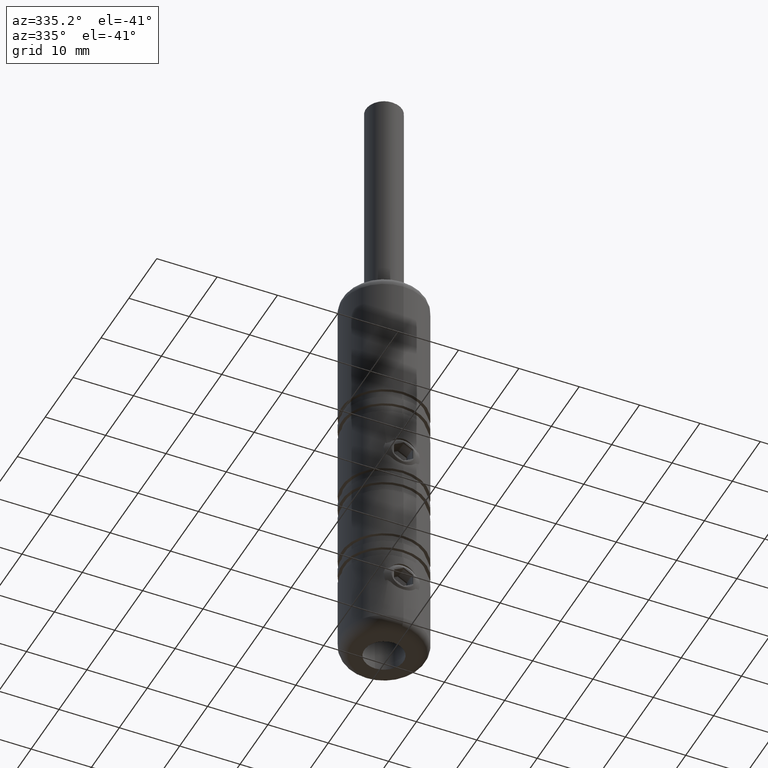
[diagram: clean part render]
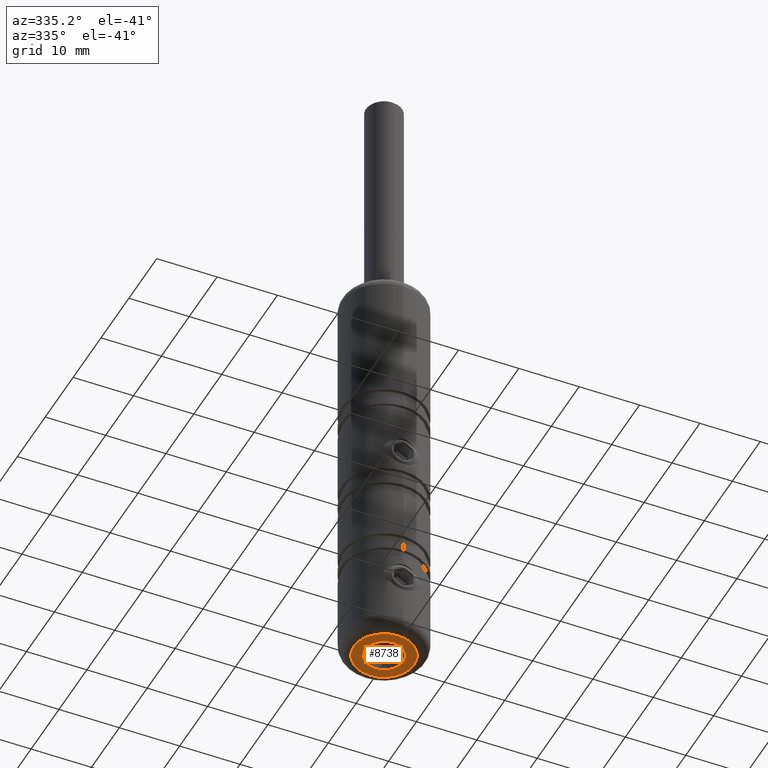
[diagram: same view with one face highlighted and labeled with its STEP entity id]
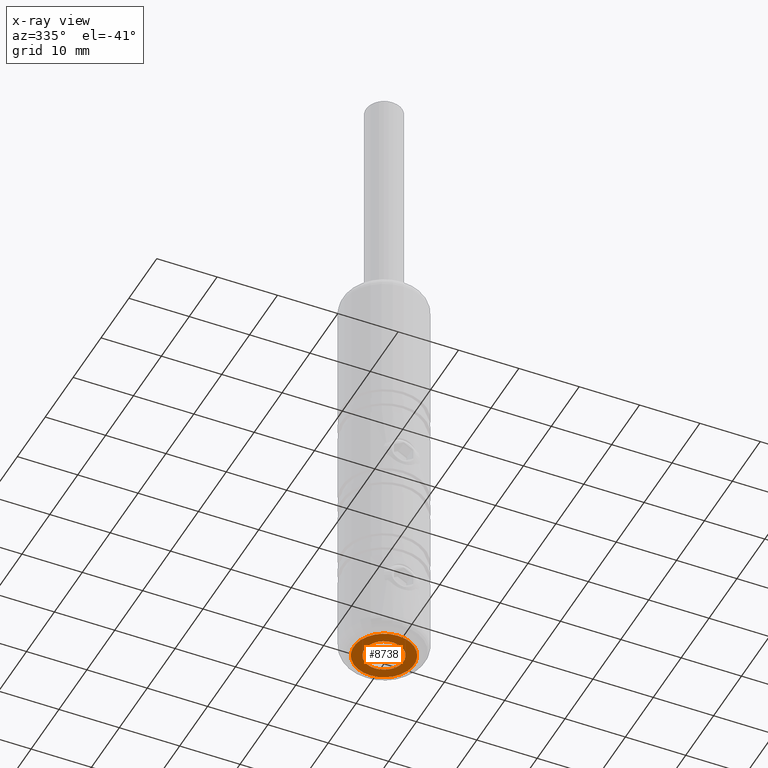
[diagram: x-ray of the same camera — body ghosted, the highlighted face saturated]
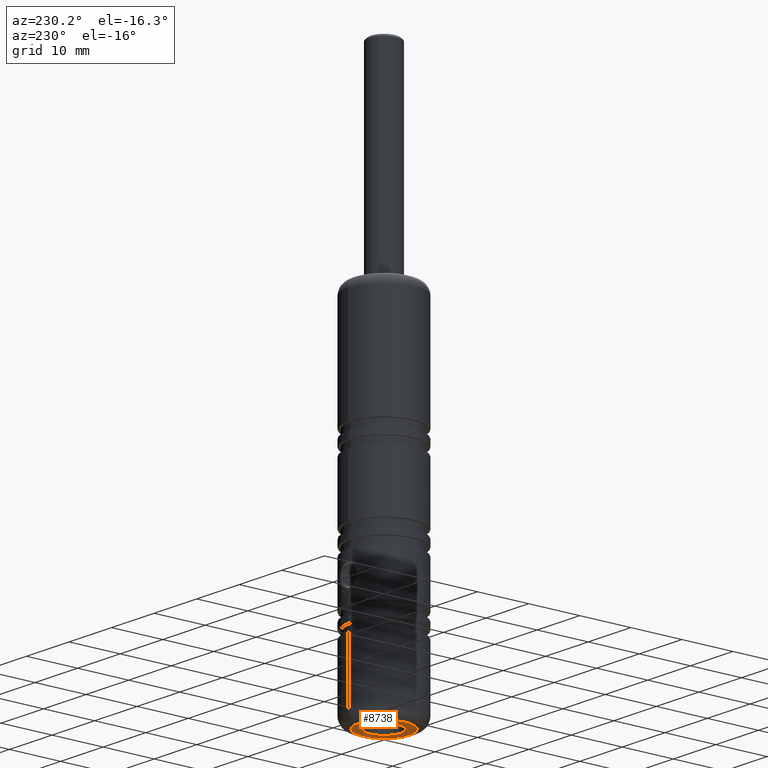
[diagram: same view with one face highlighted and labeled with its STEP entity id]
A machine part, auxiliary view. The second image highlights one B-rep face of the part: STEP entity #8738.
The next image is the same camera in x-ray: the body ghosted, the highlighted face saturated — about 0% of this face is hidden behind the body in this view.
A second angle (auxiliary view) of the same face is appended — the face is thin or edge-on in the first view.
In plain terms, the highlighted planar face has unit normal (0, 0, 1).
Its self-contained STEP definition (entity closure, byte-faithful):
#80 = ORIENTED_EDGE ( 'NONE', *, *, #14233, .F. ) ;
#440 = CIRCLE ( 'NONE', #6251, 4.999999999999992000 ) ;
#1014 = CARTESIAN_POINT ( 'NONE',  ( 7.347880794884109900E-016, 4.999999999999987600, -35.00000000000000000 ) ) ;
#1183 = VERTEX_POINT ( 'NONE', #1935 ) ;
#1593 = CIRCLE ( 'NONE', #2231, 3.250000000000000400 ) ;
#1877 = CARTESIAN_POINT ( 'NONE',  ( 0.0000000000000000000, -4.190958695621474100E-015, -35.00000000000000000 ) ) ;
#1935 = CARTESIAN_POINT ( 'NONE',  ( 0.0000000000000000000, 3.249999999999998200, -35.00000000000000000 ) ) ;
#2231 = AXIS2_PLACEMENT_3D ( 'NONE', #3133, #10865, #8354 ) ;
#2280 = VERTEX_POINT ( 'NONE', #9500 ) ;
#2332 = EDGE_CURVE ( 'NONE', #11993, #7819, #10376, .T. ) ;
#3133 = CARTESIAN_POINT ( 'NONE',  ( 0.0000000000000000000, -2.095479347810736700E-015, -35.00000000000000000 ) ) ;
#3139 = DIRECTION ( 'NONE',  ( 0.0000000000000000000, -1.000000000000000000, 5.987083850887820200E-017 ) ) ;
#4368 = ORIENTED_EDGE ( 'NONE', *, *, #15777, .F. ) ;
#4603 = DIRECTION ( 'NONE',  ( -0.0000000000000000000, 5.987083850887820200E-017, 1.000000000000000000 ) ) ;
#5586 = DIRECTION ( 'NONE',  ( 0.0000000000000000000, -5.987083850887820200E-017, -1.000000000000000000 ) ) ;
#5846 = ORIENTED_EDGE ( 'NONE', *, *, #2332, .T. ) ;
#6251 = AXIS2_PLACEMENT_3D ( 'NONE', #16485, #15224, #12738 ) ;
#6708 = FACE_OUTER_BOUND ( 'NONE', #7111, .T. ) ;
#7111 = EDGE_LOOP ( 'NONE', ( #5846, #12812 ) ) ;
#7731 = CIRCLE ( 'NONE', #14320, 3.250000000000000400 ) ;
#7819 = VERTEX_POINT ( 'NONE', #1014 ) ;
#8117 = FACE_BOUND ( 'NONE', #16056, .T. ) ;
#8354 = DIRECTION ( 'NONE',  ( 0.0000000000000000000, 1.000000000000000000, 0.0000000000000000000 ) ) ;
#8738 = ADVANCED_FACE ( 'NONE', ( #8117, #6708 ), #9603, .F. ) ;
#8837 = CARTESIAN_POINT ( 'NONE',  ( 0.0000000000000000000, -4.999999999999996400, -35.00000000000000000 ) ) ;
#9500 = CARTESIAN_POINT ( 'NONE',  ( 3.980102097228898200E-016, -3.250000000000002700, -35.00000000000000000 ) ) ;
#9603 = PLANE ( 'NONE',  #9918 ) ;
#9918 = AXIS2_PLACEMENT_3D ( 'NONE', #1877, #4603, #3139 ) ;
#10376 = CIRCLE ( 'NONE', #16191, 4.999999999999992000 ) ;
#10817 = DIRECTION ( 'NONE',  ( 0.0000000000000000000, -1.000000000000000000, 0.0000000000000000000 ) ) ;
#10865 = DIRECTION ( 'NONE',  ( 0.0000000000000000000, 6.123233995736768500E-017, -1.000000000000000000 ) ) ;
#11879 = CARTESIAN_POINT ( 'NONE',  ( 0.0000000000000000000, -2.095479347810736700E-015, -35.00000000000000000 ) ) ;
#11893 = EDGE_CURVE ( 'NONE', #7819, #11993, #440, .T. ) ;
#11993 = VERTEX_POINT ( 'NONE', #8837 ) ;
#12738 = DIRECTION ( 'NONE',  ( 0.0000000000000000000, -1.000000000000000000, 0.0000000000000000000 ) ) ;
#12812 = ORIENTED_EDGE ( 'NONE', *, *, #11893, .T. ) ;
#14233 = EDGE_CURVE ( 'NONE', #1183, #2280, #7731, .T. ) ;
#14320 = AXIS2_PLACEMENT_3D ( 'NONE', #11879, #15717, #15772 ) ;
#15224 = DIRECTION ( 'NONE',  ( 0.0000000000000000000, -5.987083850887820200E-017, -1.000000000000000000 ) ) ;
#15717 = DIRECTION ( 'NONE',  ( 0.0000000000000000000, 6.123233995736768500E-017, -1.000000000000000000 ) ) ;
#15772 = DIRECTION ( 'NONE',  ( 0.0000000000000000000, 1.000000000000000000, 0.0000000000000000000 ) ) ;
#15777 = EDGE_CURVE ( 'NONE', #2280, #1183, #1593, .T. ) ;
#15942 = CARTESIAN_POINT ( 'NONE',  ( 0.0000000000000000000, -4.190958695621474900E-015, -35.00000000000000000 ) ) ;
#16056 = EDGE_LOOP ( 'NONE', ( #80, #4368 ) ) ;
#16191 = AXIS2_PLACEMENT_3D ( 'NONE', #15942, #5586, #10817 ) ;
#16485 = CARTESIAN_POINT ( 'NONE',  ( 0.0000000000000000000, -4.190958695621474900E-015, -35.00000000000000000 ) ) ;